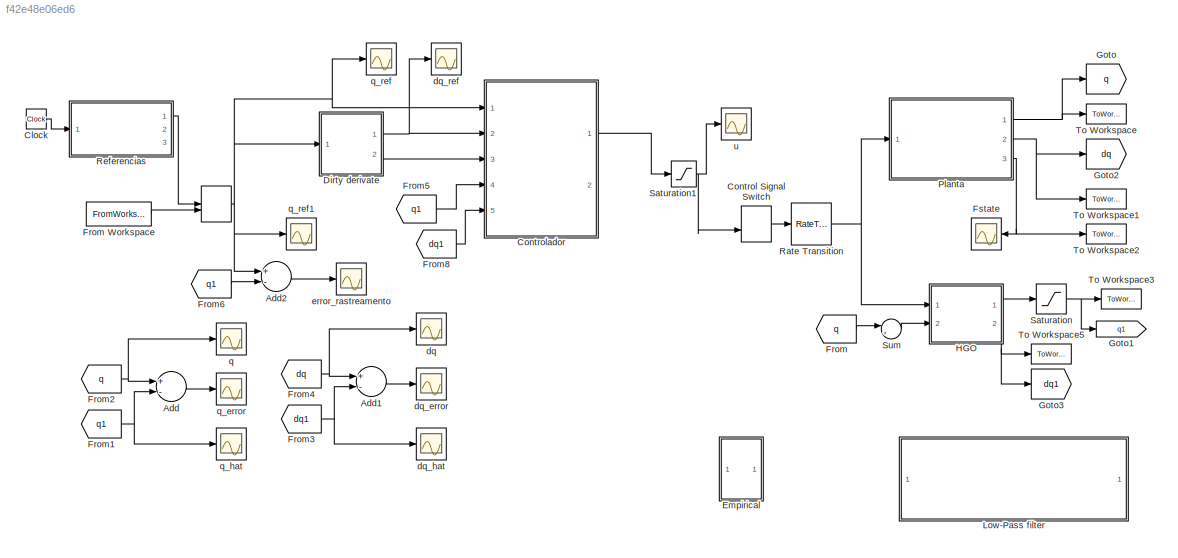
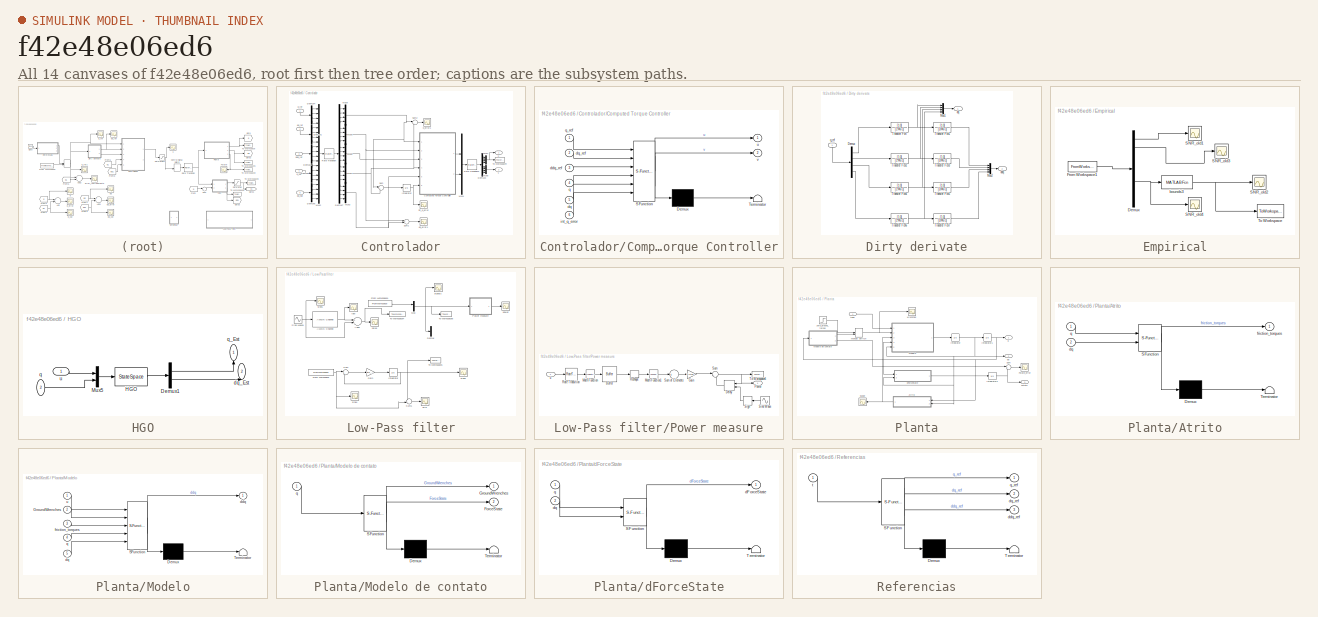
[diagram: thumbnail index - all 14 canvases of the model, root first then tree order]
MODEL slx_f42e48e06ed6
KIND model
CONFIG AbsTol = auto
CONFIG EnableMultiTasking = on
CONFIG FixedStep = simulation_step
CONFIG MaxStep = 1e-2
CONFIG MinStep = auto
CONFIG RelTol = 1e-3
CONFIG SampleTimeConstraint = Unconstrained
CONFIG Solver = FixedStepAuto
CONFIG SolverName = FixedStepAuto
CONFIG StartTime = 0.0
CONFIG StopTime = 15
BLOCK [ManualSwitch]  
  CurrentSetting = 0
BLOCK [Sum] Add
  InputSameDT = off
  Inputs = +-
  OutDataTypeStr = Inherit: Inherit via internal rule
  Ports = [2, 1]
  SaturateOnIntegerOverflow = off
BLOCK [Sum] Add1
  InputSameDT = off
  Inputs = +-
  OutDataTypeStr = Inherit: Inherit via internal rule
  Ports = [2, 1]
  SaturateOnIntegerOverflow = off
BLOCK [Sum] Add2
  InputSameDT = off
  Inputs = +-
  OutDataTypeStr = Inherit: Inherit via internal rule
  Ports = [2, 1]
  SaturateOnIntegerOverflow = off
BLOCK [Clock] Clock
BLOCK [ManualSwitch] Control Signal Switch
  CurrentSetting = 0
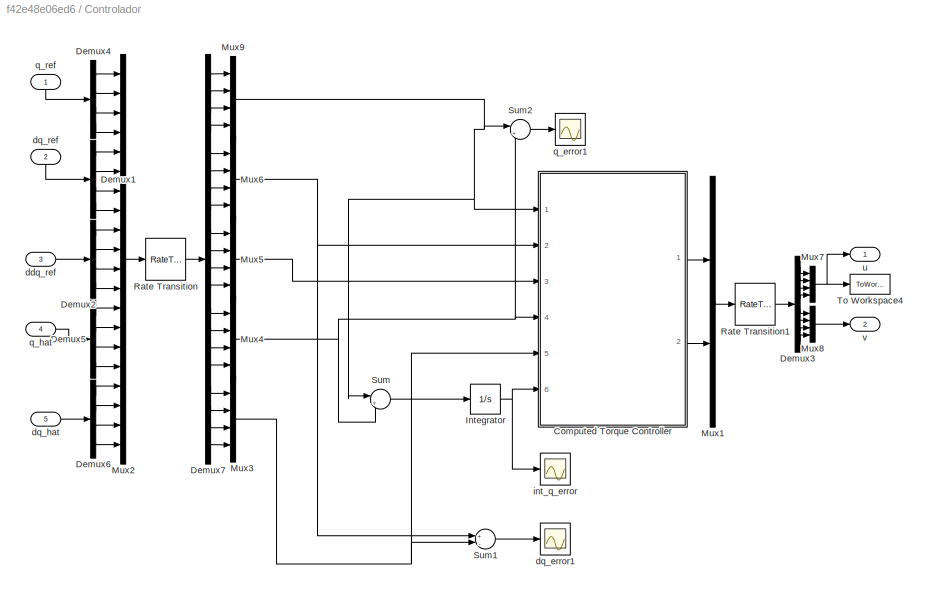
BLOCK [SubSystem] Controlador
  Ports = [5, 2]
  RequestExecContextInheritance = off
  Variant = off
BLOCK [SubSystem] Controlador/Computed Torque Controller
  ErrorFcn = Stateflow.Translate.translate
  PermitHierarchicalResolution = ExplicitOnly
  Ports = [6, 2]
  RequestExecContextInheritance = off
  SFBlockType = MATLAB Function
  TreatAsAtomicUnit = on
  Variant = off
BLOCK [Demux] Controlador/Computed Torque Controller/ Demux 
  Outputs = 1
  Ports = [1, 1]
BLOCK [S-Function] Controlador/Computed Torque Controller/ SFunction 
  EnableBusSupport = on
  FunctionName = sf_sfun
  Parameters = G_ctrl,Inertia_ctrl,Kd,Ki,Kp,L_ctrl,Mass_ctrl,R_ctrl,h_ctrl,joint_type
  PortCounts = [6 3]
  Ports = [6, 3]
  SFcnIsStateOwnerBlock = off
  SFunctionDeploymentMode = off
  Tag = Stateflow S-Function Leg_4DOF_HGO_noise 5
BLOCK [Terminator] Controlador/Computed Torque Controller/ Terminator 
BLOCK [Inport] Controlador/Computed Torque Controller/ddq_ref
  IconDisplay = Port number
  Port = 3
BLOCK [Inport] Controlador/Computed Torque Controller/dq
  IconDisplay = Port number
  Port = 5
BLOCK [Inport] Controlador/Computed Torque Controller/dq_ref
  IconDisplay = Port number
  Port = 2
BLOCK [Inport] Controlador/Computed Torque Controller/int_q_error
  IconDisplay = Port number
  Port = 6
BLOCK [Inport] Controlador/Computed Torque Controller/q
  IconDisplay = Port number
  Port = 4
BLOCK [Inport] Controlador/Computed Torque Controller/q_ref
  IconDisplay = Port number
BLOCK [Outport] Controlador/Computed Torque Controller/u
  IconDisplay = Port number
BLOCK [Outport] Controlador/Computed Torque Controller/v
  IconDisplay = Port number
  Port = 2
BLOCK [Demux] Controlador/Demux1
  DisplayOption = bar
  Ports = [1, 4]
BLOCK [Demux] Controlador/Demux2
  DisplayOption = bar
  Ports = [1, 4]
BLOCK [Demux] Controlador/Demux3
  DisplayOption = bar
  Outputs = 8
  Ports = [1, 8]
BLOCK [Demux] Controlador/Demux4
  DisplayOption = bar
  Ports = [1, 4]
BLOCK [Demux] Controlador/Demux5
  DisplayOption = bar
  Ports = [1, 4]
BLOCK [Demux] Controlador/Demux6
  DisplayOption = bar
  Ports = [1, 4]
BLOCK [Demux] Controlador/Demux7
  DisplayOption = bar
  Outputs = 20
  Ports = [1, 20]
BLOCK [Integrator] Controlador/Integrator
  InitialCondition = zeros(4,1)
  Ports = [1, 1]
BLOCK [Mux] Controlador/Mux1
  DisplayOption = bar
  Inputs = 2
  Ports = [2, 1]
BLOCK [Mux] Controlador/Mux2
  DisplayOption = bar
  Inputs = 20
  Ports = [20, 1]
BLOCK [Mux] Controlador/Mux3
  DisplayOption = bar
  Ports = [4, 1]
BLOCK [Mux] Controlador/Mux4
  DisplayOption = bar
  Ports = [4, 1]
BLOCK [Mux] Controlador/Mux5
  DisplayOption = bar
  Ports = [4, 1]
BLOCK [Mux] Controlador/Mux6
  DisplayOption = bar
  Ports = [4, 1]
BLOCK [Mux] Controlador/Mux7
  DisplayOption = bar
  Ports = [4, 1]
BLOCK [Mux] Controlador/Mux8
  DisplayOption = bar
  Ports = [4, 1]
BLOCK [Mux] Controlador/Mux9
  DisplayOption = bar
  Ports = [4, 1]
BLOCK [RateTransition] Controlador/Rate Transition
  OutPortSampleTime = simulation_step
BLOCK [RateTransition] Controlador/Rate Transition1
  OutPortSampleTime = 1e-3
BLOCK [Sum] Controlador/Sum
  IconShape = round
  InputSameDT = off
  Inputs = |+-
  OutDataTypeStr = Inherit: Inherit via internal rule
  Ports = [2, 1]
  SaturateOnIntegerOverflow = off
BLOCK [Sum] Controlador/Sum1
  IconShape = round
  InputSameDT = off
  Inputs = +|-
  OutDataTypeStr = Inherit: Inherit via internal rule
  Ports = [2, 1]
  SaturateOnIntegerOverflow = off
BLOCK [Sum] Controlador/Sum2
  IconShape = round
  InputSameDT = off
  Inputs = |+-
  OutDataTypeStr = Inherit: Inherit via internal rule
  Ports = [2, 1]
  SaturateOnIntegerOverflow = off
BLOCK [ToWorkspace] Controlador/To Workspace4
  FixptAsFi = on
  MaxDataPoints = inf
  Ports = [1]
  SampleTime = -1
  Save2DSignal = 3-D array (concatenate along third dimension)
  SaveFormat = Timeseries
  VariableName = u1
BLOCK [Inport] Controlador/ddq_ref
  IconDisplay = Port number
  Port = 3
BLOCK [Scope] Controlador/dq_error1
  NumInputPorts = 1
  Ports = [1]
  ScopeSpecificationString = Simulink.scopes.TimeScopeBlockCfg('CurrentConfiguration', extmgr.ConfigurationSet(extmgr.Configuration('Core','General UI',true),extmgr.Configuration('Core','Source UI',true),extmgr.Configuration('Sources','WiredSimulink',true,'DataLoggingVariableName','ScopeData3','DataLoggingLimitDataPoints',true,'DataLoggingSaveFormat','Array','DataLoggingDecimation','1','DataLoggingDecimateData',true),extmgr.C...<+898ch>
BLOCK [Inport] Controlador/dq_hat
  IconDisplay = Port number
  Port = 5
BLOCK [Inport] Controlador/dq_ref
  IconDisplay = Port number
  Port = 2
BLOCK [Scope] Controlador/int_q_error
  NumInputPorts = 1
  Ports = [1]
  ScopeSpecificationString = Simulink.scopes.TimeScopeBlockCfg('CurrentConfiguration', extmgr.ConfigurationSet(extmgr.Configuration('Core','General UI',true),extmgr.Configuration('Core','Source UI',true),extmgr.Configuration('Sources','WiredSimulink',true,'DataLoggingVariableName','ScopeData4','DataLoggingLimitDataPoints',true,'DataLoggingSaveFormat','Array','DataLoggingDecimation','1','DataLoggingDecimateData',true),extmgr.C...<+1741ch>
BLOCK [Scope] Controlador/q_error1
  NumInputPorts = 1
  Ports = [1]
  ScopeSpecificationString = Simulink.scopes.TimeScopeBlockCfg('CurrentConfiguration', extmgr.ConfigurationSet(extmgr.Configuration('Core','General UI',true),extmgr.Configuration('Core','Source UI',true),extmgr.Configuration('Sources','WiredSimulink',true,'DataLoggingVariableName','ScopeData5','DataLoggingLimitDataPoints',true,'DataLoggingSaveFormat','Array','DataLoggingDecimation','1','DataLoggingDecimateData',true),extmgr.C...<+1785ch>
BLOCK [Inport] Controlador/q_hat
  IconDisplay = Port number
  Port = 4
BLOCK [Inport] Controlador/q_ref
  IconDisplay = Port number
BLOCK [Outport] Controlador/u
  IconDisplay = Port number
BLOCK [Outport] Controlador/v
  IconDisplay = Port number
  Port = 2
BLOCK [SubSystem] Dirty derivate
  Ports = [1, 2]
  RequestExecContextInheritance = off
  Variant = off
BLOCK [Demux] Dirty derivate/Demux
  DisplayOption = bar
  Ports = [1, 4]
BLOCK [Mux] Dirty derivate/Mux1
  DisplayOption = bar
  Ports = [4, 1]
BLOCK [Mux] Dirty derivate/Mux2
  DisplayOption = bar
  Ports = [4, 1]
BLOCK [TransferFcn] Dirty derivate/Transfer Fcn
  Denominator = [1*Mu 1]
  Numerator = [1 0]
BLOCK [TransferFcn] Dirty derivate/Transfer Fcn1
  Denominator = [1/Mu 1]
  Numerator = [1 0]
BLOCK [TransferFcn] Dirty derivate/Transfer Fcn2
  Denominator = [1*Mu 1]
  Numerator = [1 0]
BLOCK [TransferFcn] Dirty derivate/Transfer Fcn3
  Denominator = [1/Mu 1]
  Numerator = [1 0]
BLOCK [TransferFcn] Dirty derivate/Transfer Fcn4
  Denominator = [1*Mu 1]
  Numerator = [1 0]
BLOCK [TransferFcn] Dirty derivate/Transfer Fcn5
  Denominator = [1/Mu 1]
  Numerator = [1 0]
BLOCK [TransferFcn] Dirty derivate/Transfer Fcn6
  Denominator = [1*Mu 1]
  Numerator = [1 0]
BLOCK [TransferFcn] Dirty derivate/Transfer Fcn7
  Denominator = [1/Mu 1]
  Numerator = [1 0]
BLOCK [Outport] Dirty derivate/ddq
  IconDisplay = Port number
  Port = 2
BLOCK [Outport] Dirty derivate/dq
  IconDisplay = Port number
BLOCK [Inport] Dirty derivate/q_ref
  IconDisplay = Port number
BLOCK [SubSystem] Empirical
  Ports = []
  RequestExecContextInheritance = off
  Variant = off
BLOCK [Demux] Empirical/Demux
  DisplayOption = bar
  Outputs = 8
  Ports = [1, 8]
BLOCK [FromWorkspace] Empirical/From Workspace1
  SampleTime = 0
  VariableName = data_steps_noisy
  ZeroCross = on
BLOCK [Scope] Empirical/SNR_old1
  NumInputPorts = 1
  Ports = [1]
  ScopeSpecificationString = Simulink.scopes.TimeScopeBlockCfg('CurrentConfiguration', extmgr.ConfigurationSet(extmgr.Configuration('Core','General UI',true),extmgr.Configuration('Core','Source UI',true),extmgr.Configuration('Sources','WiredSimulink',true,'DataLoggingVariableName','ScopeData5','DataLoggingSaveFormat','Array','DataLoggingDecimation','1','DataLoggingDecimateData',true),extmgr.Configuration('Visuals','Time Domai...<+1697ch>
BLOCK [Scope] Empirical/SNR_old2
  NumInputPorts = 1
  Ports = [1]
  ScopeSpecificationString = Simulink.scopes.TimeScopeBlockCfg('CurrentConfiguration', extmgr.ConfigurationSet(extmgr.Configuration('Core','General UI',true),extmgr.Configuration('Core','Source UI',true),extmgr.Configuration('Sources','WiredSimulink',true,'DataLoggingVariableName','ScopeData4','DataLoggingSaveFormat','Array','DataLoggingDecimation','1','DataLoggingDecimateData',true),extmgr.Configuration('Visuals','Time Domai...<+2133ch>
BLOCK [Scope] Empirical/SNR_old3
  NumInputPorts = 1
  Ports = [1]
  ScopeSpecificationString = Simulink.scopes.TimeScopeBlockCfg('CurrentConfiguration', extmgr.ConfigurationSet(extmgr.Configuration('Core','General UI',true),extmgr.Configuration('Core','Source UI',true),extmgr.Configuration('Sources','WiredSimulink',true,'DataLoggingVariableName','ScopeData6','DataLoggingSaveFormat','Array','DataLoggingDecimation','1','DataLoggingDecimateData',true),extmgr.Configuration('Visuals','Time Domai...<+2005ch>
BLOCK [Scope] Empirical/SNR_old4
  NumInputPorts = 1
  Ports = [1]
  ScopeSpecificationString = Simulink.scopes.TimeScopeBlockCfg('CurrentConfiguration', extmgr.ConfigurationSet(extmgr.Configuration('Core','General UI',true),extmgr.Configuration('Core','Source UI',true),extmgr.Configuration('Sources','WiredSimulink',true,'DataLoggingVariableName','ScopeData7','DataLoggingSaveFormat','Array','DataLoggingDecimation','1','DataLoggingDecimateData',true),extmgr.Configuration('Visuals','Time Domai...<+1725ch>
BLOCK [ToWorkspace] Empirical/To Workspace
  FixptAsFi = on
  MaxDataPoints = inf
  Ports = [1]
  SampleTime = -1
  Save2DSignal = 2-D array (concatenate along first dimension)
  VariableName = empirical_filter
BLOCK [MATLABFcn] Empirical/bounds3
  MATLABFcn = sinalruido
  Output1D = off
  Ports = [1, 1]
BLOCK [From] From
  GotoTag = q
BLOCK [FromWorkspace] From Workspace
  SampleTime = 0
  VariableName = data_steps
  ZeroCross = on
BLOCK [From] From1
  GotoTag = q1
BLOCK [From] From2
  GotoTag = q
BLOCK [From] From3
  GotoTag = dq1
BLOCK [From] From4
  GotoTag = dq
BLOCK [From] From5
  GotoTag = q1
BLOCK [From] From6
  GotoTag = q1
BLOCK [From] From8
  GotoTag = dq1
BLOCK [Scope] Fstate
  NumInputPorts = 1
  Ports = [1]
  ScopeSpecificationString = Simulink.scopes.TimeScopeBlockCfg('CurrentConfiguration', extmgr.ConfigurationSet(extmgr.Configuration('Core','General UI',true),extmgr.Configuration('Core','Source UI',true),extmgr.Configuration('Sources','WiredSimulink',true,'DataLoggingLimitDataPoints',true,'DataLoggingSaveFormat','Array','DataLoggingDecimation','1','DataLoggingDecimateData',true,'DataLoggingVariableName','ScopeData1'),extmgr.C...<+1750ch>
BLOCK [Goto] Goto
  GotoTag = q
BLOCK [Goto] Goto1
  GotoTag = q1
BLOCK [Goto] Goto2
  GotoTag = dq
BLOCK [Goto] Goto3
  GotoTag = dq1
BLOCK [SubSystem] HGO
  Ports = [2, 2]
  RequestExecContextInheritance = off
  Variant = off
BLOCK [Demux] HGO/Demux1
  DisplayOption = bar
  Outputs = 2
  Ports = [1, 2]
BLOCK [StateSpace] HGO/HGO
  A = Ar-Hmu*L_hgo*Cr
  B = [Br Hmu*L_hgo]
  C = eye(8)
  D = zeros(8)
  Ports = [1, 1]
  X0 = [0.0181; 0.5; -0.15; -0.38; 0.0; 0.0; 0.0; 0.0]
BLOCK [Mux] HGO/Mux5
  DisplayOption = bar
  Inputs = 2
  Ports = [2, 1]
BLOCK [Outport] HGO/dq_Est
  IconDisplay = Port number
  Port = 2
  PortDimensions = 4
BLOCK [Inport] HGO/q
  IconDisplay = Port number
  Port = 2
BLOCK [Outport] HGO/q_Est
  IconDisplay = Port number
  PortDimensions = 4
BLOCK [Inport] HGO/u
  IconDisplay = Port number
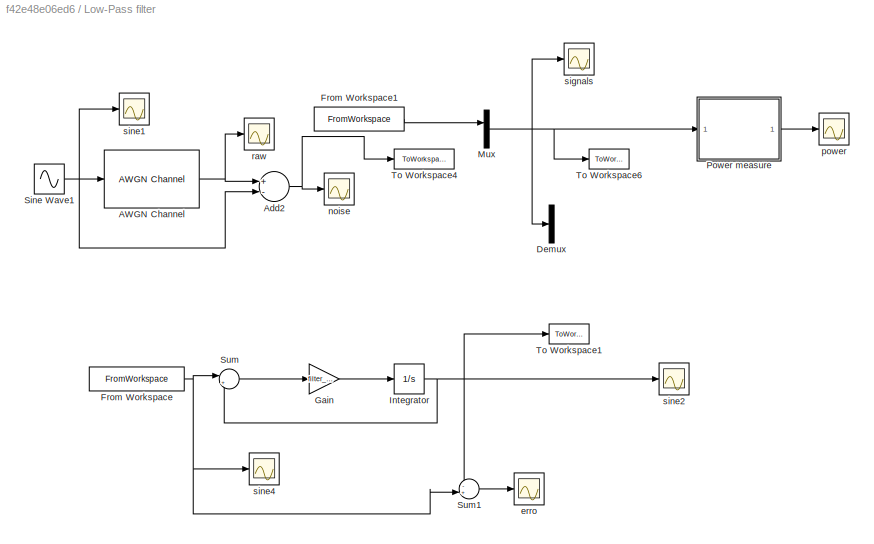
BLOCK [SubSystem] Low-Pass filter
  Ports = []
  RequestExecContextInheritance = off
  Variant = off
BLOCK [Reference] Low-Pass filter/AWGN Channel  REF=commchan3/AWGN
Channel
  Ports = [1, 1]
  SourceBlock = commchan3/AWGN\nChannel
  SourceProductBaseCode = CM
  SourceProductName = Communications System Toolbox
  SourceType = AWGN Channel
  UserDataPersistent = on
BLOCK [Sum] Low-Pass filter/Add2
  InputSameDT = off
  Inputs = +-
  OutDataTypeStr = Inherit: Inherit via internal rule
  Ports = [2, 1]
  SaturateOnIntegerOverflow = off
BLOCK [Demux] Low-Pass filter/Demux
  DisplayOption = bar
  Outputs = 5
  Ports = [1, 5]
BLOCK [FromWorkspace] Low-Pass filter/From Workspace
  SampleTime = 0
  VariableName = data_steps_noisy
  ZeroCross = on
BLOCK [FromWorkspace] Low-Pass filter/From Workspace1
  SampleTime = 0
  VariableName = data_steps
  ZeroCross = on
BLOCK [Gain] Low-Pass filter/Gain
  Gain = filter_pole
  OutDataTypeStr = Inherit: Inherit via internal rule
  ParamDataTypeStr = Inherit: Inherit via internal rule
  SaturateOnIntegerOverflow = off
BLOCK [Integrator] Low-Pass filter/Integrator
  Ports = [1, 1]
BLOCK [Mux] Low-Pass filter/Mux
  DisplayOption = bar
  Inputs = 2
  Ports = [2, 1]
BLOCK [SubSystem] Low-Pass filter/Power measure
  Ports = [1, 1]
  RequestExecContextInheritance = off
  Variant = off
BLOCK [Buffer] Low-Pass filter/Power measure/Buffer
  N = 5 * window/sampling
  OutputFrames = off
BLOCK [Delay] Low-Pass filter/Power measure/Delay
  DelayLength = 1
  ExternalReset = Either
  InputPortMap = u0,r5
  Ports = [2, 1]
BLOCK [Gain] Low-Pass filter/Power measure/Gain
  Gain = 1/(step_period/sampling)
  OutDataTypeStr = Inherit: Inherit via internal rule
  ParamDataTypeStr = Inherit: Inherit via internal rule
  SaturateOnIntegerOverflow = off
BLOCK [Math] Low-Pass filter/Power measure/Math Function
  Operator = magnitude^2
  Ports = [1, 1]
BLOCK [Math] Low-Pass filter/Power measure/Math Function1
  Operator = transpose
  Ports = [1, 1]
BLOCK [Outport] Low-Pass filter/Power measure/Power
  IconDisplay = Port number
BLOCK [RateTransition] Low-Pass filter/Power measure/Rate Transition
  OutPortSampleTime = sampling
BLOCK [Reshape] Low-Pass filter/Power measure/Reshape
  OutputDimensionality = Customize
  OutputDimensions = [5,window/sampling]
  Ports = [1, 1]
BLOCK [Signum] Low-Pass filter/Power measure/Sign
BLOCK [Sin] Low-Pass filter/Power measure/Sine Wave
  Frequency = 2*pi / (2 * step_period)
  Ports = [0, 1]
  SampleTime = window
BLOCK [Sum] Low-Pass filter/Power measure/Sum
  IconShape = round
  InputSameDT = off
  Inputs = |++
  OutDataTypeStr = Inherit: Inherit via internal rule
  Ports = [2, 1]
  SaturateOnIntegerOverflow = off
BLOCK [Sum] Low-Pass filter/Power measure/Sum of Elements
  CollapseMode = Specified dimension
  InputSameDT = off
  Inputs = +
  OutDataTypeStr = Inherit: Inherit via internal rule
  Ports = [1, 1]
  SaturateOnIntegerOverflow = off
BLOCK [ToWorkspace] Low-Pass filter/Power measure/To Workspace6
  FixptAsFi = on
  MaxDataPoints = inf
  Ports = [1]
  SampleTime = -1
  Save2DSignal = 3-D array (concatenate along third dimension)
  SaveFormat = Timeseries
  VariableName = power
BLOCK [Inport] Low-Pass filter/Power measure/u
  IconDisplay = Port number
BLOCK [Sin] Low-Pass filter/Sine Wave1
  Amplitude = 2
  Frequency = 2*pi / (2 * step_period)
  Ports = [0, 1]
  SampleTime = 0
BLOCK [Sum] Low-Pass filter/Sum
  IconShape = round
  InputSameDT = off
  Inputs = |+-
  OutDataTypeStr = Inherit: Inherit via internal rule
  Ports = [2, 1]
  SaturateOnIntegerOverflow = off
BLOCK [Sum] Low-Pass filter/Sum1
  IconShape = round
  InputSameDT = off
  Inputs = -+|
  OutDataTypeStr = Inherit: Inherit via internal rule
  Ports = [2, 1]
  SaturateOnIntegerOverflow = off
BLOCK [ToWorkspace] Low-Pass filter/To Workspace1
  FixptAsFi = on
  MaxDataPoints = inf
  Ports = [1]
  SampleTime = -1
  Save2DSignal = 3-D array (concatenate along third dimension)
  SaveFormat = Timeseries
  VariableName = data_steps_filtered
BLOCK [ToWorkspace] Low-Pass filter/To Workspace4
  FixptAsFi = on
  MaxDataPoints = inf
  Ports = [1]
  SampleTime = -1
  Save2DSignal = 3-D array (concatenate along third dimension)
  SaveFormat = Timeseries
  VariableName = noise_band
BLOCK [ToWorkspace] Low-Pass filter/To Workspace6
  FixptAsFi = on
  MaxDataPoints = inf
  Ports = [1]
  SampleTime = -1
  Save2DSignal = 3-D array (concatenate along third dimension)
  SaveFormat = Timeseries
  VariableName = u_teste
BLOCK [Scope] Low-Pass filter/erro
  NumInputPorts = 1
  Ports = [1]
  ScopeSpecificationString = Simulink.scopes.TimeScopeBlockCfg('CurrentConfiguration', extmgr.ConfigurationSet(extmgr.Configuration('Core','General UI',true),extmgr.Configuration('Core','Source UI',true),extmgr.Configuration('Sources','WiredSimulink',true,'DataLoggingVariableName','ScopeData2','DataLoggingSaveFormat','Array','DataLoggingDecimation','1','DataLoggingDecimateData',true),extmgr.Configuration('Visuals','Time Domai...<+1736ch>
BLOCK [Scope] Low-Pass filter/noise
  NumInputPorts = 1
  Ports = [1]
  ScopeSpecificationString = Simulink.scopes.TimeScopeBlockCfg('CurrentConfiguration', extmgr.ConfigurationSet(extmgr.Configuration('Core','General UI',true),extmgr.Configuration('Core','Source UI',true),extmgr.Configuration('Sources','WiredSimulink',true,'DataLoggingVariableName','ScopeData9','DataLoggingSaveFormat','Array','DataLoggingDecimation','1','DataLoggingDecimateData',true),extmgr.Configuration('Visuals','Time Domai...<+1693ch>
BLOCK [Scope] Low-Pass filter/power
  NumInputPorts = 1
  Ports = [1]
  ScopeSpecificationString = Simulink.scopes.TimeScopeBlockCfg('CurrentConfiguration', extmgr.ConfigurationSet(extmgr.Configuration('Core','General UI',true),extmgr.Configuration('Core','Source UI',true),extmgr.Configuration('Sources','WiredSimulink',true,'DataLoggingVariableName','ScopeData10','DataLoggingSaveFormat','Array','DataLoggingDecimation','1','DataLoggingDecimateData',true),extmgr.Configuration('Visuals','Time Doma...<+1779ch>
BLOCK [Scope] Low-Pass filter/raw
  NumInputPorts = 1
  Ports = [1]
  ScopeSpecificationString = Simulink.scopes.TimeScopeBlockCfg('CurrentConfiguration', extmgr.ConfigurationSet(extmgr.Configuration('Core','General UI',true),extmgr.Configuration('Core','Source UI',true),extmgr.Configuration('Sources','WiredSimulink',true,'DataLoggingVariableName','ScopeData16','DataLoggingSaveFormat','Array','DataLoggingDecimation','1','DataLoggingDecimateData',true),extmgr.Configuration('Visuals','Time Doma...<+1702ch>
BLOCK [Scope] Low-Pass filter/signals
  NumInputPorts = 1
  Ports = [1]
  ScopeSpecificationString = Simulink.scopes.TimeScopeBlockCfg('CurrentConfiguration', extmgr.ConfigurationSet(extmgr.Configuration('Core','General UI',true),extmgr.Configuration('Core','Source UI',true),extmgr.Configuration('Sources','WiredSimulink',true,'DataLoggingVariableName','ScopeData17','DataLoggingSaveFormat','Array','DataLoggingDecimation','1','DataLoggingDecimateData',true),extmgr.Configuration('Visuals','Time Doma...<+1779ch>
BLOCK [Scope] Low-Pass filter/sine1
  NumInputPorts = 1
  Ports = [1]
  ScopeSpecificationString = Simulink.scopes.TimeScopeBlockCfg('CurrentConfiguration', extmgr.ConfigurationSet(extmgr.Configuration('Core','General UI',true),extmgr.Configuration('Core','Source UI',true),extmgr.Configuration('Sources','WiredSimulink',true,'DataLoggingVariableName','ScopeData18','DataLoggingSaveFormat','Array','DataLoggingDecimation','1','DataLoggingDecimateData',true),extmgr.Configuration('Visuals','Time Doma...<+1700ch>
BLOCK [Scope] Low-Pass filter/sine2
  NumInputPorts = 1
  Ports = [1]
  ScopeSpecificationString = Simulink.scopes.TimeScopeBlockCfg('CurrentConfiguration', extmgr.ConfigurationSet(extmgr.Configuration('Core','General UI',true),extmgr.Configuration('Core','Source UI',true),extmgr.Configuration('Sources','WiredSimulink',true,'DataLoggingVariableName','ScopeData1','DataLoggingSaveFormat','Array','DataLoggingDecimation','1','DataLoggingDecimateData',true),extmgr.Configuration('Visuals','Time Domai...<+1784ch>
BLOCK [Scope] Low-Pass filter/sine4
  NumInputPorts = 1
  Ports = [1]
  ScopeSpecificationString = Simulink.scopes.TimeScopeBlockCfg('CurrentConfiguration', extmgr.ConfigurationSet(extmgr.Configuration('Core','General UI',true),extmgr.Configuration('Core','Source UI',true),extmgr.Configuration('Sources','WiredSimulink',true,'DataLoggingVariableName','ScopeData3','DataLoggingSaveFormat','Array','DataLoggingDecimation','1','DataLoggingDecimateData',true),extmgr.Configuration('Visuals','Time Domai...<+1816ch>
BLOCK [SubSystem] Planta
  Ports = [1, 3]
  RequestExecContextInheritance = off
  Variant = off
BLOCK [SubSystem] Planta/Atrito
  ErrorFcn = Stateflow.Translate.translate
  PermitHierarchicalResolution = ExplicitOnly
  Ports = [2, 1]
  RequestExecContextInheritance = off
  SFBlockType = MATLAB Function
  TreatAsAtomicUnit = on
  Variant = off
BLOCK [Demux] Planta/Atrito/ Demux 
  Outputs = 1
  Ports = [1, 1]
BLOCK [S-Function] Planta/Atrito/ SFunction 
  EnableBusSupport = on
  FunctionName = sf_sfun
  PortCounts = [2 2]
  Ports = [2, 2]
  SFcnIsStateOwnerBlock = off
  SFunctionDeploymentMode = off
  Tag = Stateflow S-Function Leg_4DOF_HGO_noise 4
BLOCK [Terminator] Planta/Atrito/ Terminator 
BLOCK [Inport] Planta/Atrito/dq
  IconDisplay = Port number
  Port = 2
BLOCK [Outport] Planta/Atrito/friction_torques
  IconDisplay = Port number
BLOCK [Inport] Planta/Atrito/q
  IconDisplay = Port number
BLOCK [Outport] Planta/Fstate
  IconDisplay = Port number
  Port = 3
BLOCK [Scope] Planta/Fstate_error
  NumInputPorts = 1
  Ports = [1]
  ScopeSpecificationString = Simulink.scopes.TimeScopeBlockCfg('CurrentConfiguration', extmgr.ConfigurationSet(extmgr.Configuration('Core','General UI',true),extmgr.Configuration('Core','Source UI',true),extmgr.Configuration('Sources','WiredSimulink',true,'DataLoggingSaveFormat','Array','DataLoggingDecimation','1','DataLoggingDecimateData',true,'DataLoggingVariableName','ScopeData3'),extmgr.Configuration('Visuals','Time Domai...<+1684ch>
BLOCK [Integrator] Planta/Integrator
  InitialCondition = dqInit
  Ports = [1, 1]
BLOCK [Integrator] Planta/Integrator1
  InitialCondition = qInit
  Ports = [1, 1]
BLOCK [Integrator] Planta/Integrator2
  InitialCondition = Fstate0
  Ports = [1, 1]
BLOCK [ManualSwitch] Planta/Manual Switch
  CurrentSetting = 0
BLOCK [SubSystem] Planta/Modelo
  ErrorFcn = Stateflow.Translate.translate
  PermitHierarchicalResolution = ExplicitOnly
  Ports = [5, 1]
  RequestExecContextInheritance = off
  SFBlockType = MATLAB Function
  TreatAsAtomicUnit = on
  Variant = off
BLOCK [SubSystem] Planta/Modelo de contato
  ErrorFcn = Stateflow.Translate.translate
  PermitHierarchicalResolution = ExplicitOnly
  Ports = [1, 2]
  RequestExecContextInheritance = off
  SFBlockType = MATLAB Function
  TreatAsAtomicUnit = on
  Variant = off
BLOCK [Demux] Planta/Modelo de contato/ Demux 
  Outputs = 1
  Ports = [1, 1]
BLOCK [S-Function] Planta/Modelo de contato/ SFunction 
  EnableBusSupport = on
  FunctionName = sf_sfun
  Parameters = BodyContactPositions,L,beta,h,joint_type,k_b,s_z
  PortCounts = [1 3]
  Ports = [1, 3]
  SFcnIsStateOwnerBlock = off
  SFunctionDeploymentMode = off
  Tag = Stateflow S-Function Leg_4DOF_HGO_noise 6
BLOCK [Terminator] Planta/Modelo de contato/ Terminator 
BLOCK [Outport] Planta/Modelo de contato/ForceState
  IconDisplay = Port number
  Port = 2
BLOCK [Outport] Planta/Modelo de contato/GroundWrenches
  IconDisplay = Port number
BLOCK [Inport] Planta/Modelo de contato/q
  IconDisplay = Port number
BLOCK [Demux] Planta/Modelo/ Demux 
  Outputs = 1
  Ports = [1, 1]
BLOCK [S-Function] Planta/Modelo/ SFunction 
  EnableBusSupport = on
  FunctionName = sf_sfun
  Parameters = BodyContact,BodyContactPositions,G,Inertia,L,Mass,R,h,joint_type
  PortCounts = [5 2]
  Ports = [5, 2]
  SFcnIsStateOwnerBlock = off
  SFunctionDeploymentMode = off
  Tag = Stateflow S-Function Leg_4DOF_HGO_noise 2
BLOCK [Terminator] Planta/Modelo/ Terminator 
BLOCK [Inport] Planta/Modelo/GroundWrenches
  IconDisplay = Port number
  Port = 2
BLOCK [Outport] Planta/Modelo/ddq
  IconDisplay = Port number
BLOCK [Inport] Planta/Modelo/dq
  IconDisplay = Port number
  Port = 5
BLOCK [Inport] Planta/Modelo/friction_torques
  IconDisplay = Port number
  Port = 3
BLOCK [Inport] Planta/Modelo/q
  IconDisplay = Port number
  Port = 4
BLOCK [Inport] Planta/Modelo/u
  IconDisplay = Port number
BLOCK [Scope] Planta/Scope
  NumInputPorts = 1
  Ports = [1]
  ScopeSpecificationString = Simulink.scopes.TimeScopeBlockCfg('CurrentConfiguration', extmgr.ConfigurationSet(extmgr.Configuration('Core','General UI',true),extmgr.Configuration('Core','Source UI',true),extmgr.Configuration('Sources','WiredSimulink',true,'DataLoggingVariableName','ScopeData4'),extmgr.Configuration('Visuals','Time Domain',true),extmgr.Configuration('Tools','Plot Navigation',true),extmgr.Configuration('Tools',...<+40ch>
BLOCK [Sum] Planta/Sum
  IconShape = round
  InputSameDT = off
  Inputs = |+-
  OutDataTypeStr = Inherit: Inherit via internal rule
  Ports = [2, 1]
  SaturateOnIntegerOverflow = off
BLOCK [SubSystem] Planta/dForceState
  ErrorFcn = Stateflow.Translate.translate
  PermitHierarchicalResolution = ExplicitOnly
  Ports = [2, 1]
  RequestExecContextInheritance = off
  SFBlockType = MATLAB Function
  TreatAsAtomicUnit = on
  Variant = off
BLOCK [Demux] Planta/dForceState/ Demux 
  Outputs = 1
  Ports = [1, 1]
BLOCK [S-Function] Planta/dForceState/ SFunction 
  EnableBusSupport = on
  FunctionName = sf_sfun
  Parameters = BodyContactPositions,L,beta,h,joint_type,k_b,s_z
  PortCounts = [2 2]
  Ports = [2, 2]
  SFcnIsStateOwnerBlock = off
  SFunctionDeploymentMode = off
  Tag = Stateflow S-Function Leg_4DOF_HGO_noise 7
BLOCK [Terminator] Planta/dForceState/ Terminator 
BLOCK [Outport] Planta/dForceState/dForceState
  IconDisplay = Port number
BLOCK [Inport] Planta/dForceState/dq
  IconDisplay = Port number
  Port = 2
BLOCK [Inport] Planta/dForceState/q
  IconDisplay = Port number
BLOCK [Outport] Planta/dq
  IconDisplay = Port number
  Port = 2
BLOCK [Outport] Planta/q
  IconDisplay = Port number
BLOCK [Inport] Planta/tauq
  IconDisplay = Port number
BLOCK [Scope] Planta/wrenches
  NumInputPorts = 1
  Ports = [1]
  ScopeSpecificationString = Simulink.scopes.TimeScopeBlockCfg('CurrentConfiguration', extmgr.ConfigurationSet(extmgr.Configuration('Core','General UI',true),extmgr.Configuration('Core','Source UI',true),extmgr.Configuration('Sources','WiredSimulink',true,'DataLoggingLimitDataPoints',true,'DataLoggingSaveFormat','Array','DataLoggingDecimation','1','DataLoggingDecimateData',true,'DataLoggingVariableName','ScopeData1'),extmgr.C...<+1933ch>
BLOCK [Step] Planta/zero_ground_forces
  After = zeros(6,2)
  Before = zeros(6,2)
  SampleTime = simulation_step
BLOCK [RateTransition] Rate Transition
  OutPortSampleTime = simulation_step
BLOCK [SubSystem] Referencias
  ErrorFcn = Stateflow.Translate.translate
  PermitHierarchicalResolution = ExplicitOnly
  Ports = [1, 3]
  RequestExecContextInheritance = off
  SFBlockType = MATLAB Function
  TreatAsAtomicUnit = on
  Variant = off
BLOCK [Demux] Referencias/ Demux 
  Outputs = 1
  Ports = [1, 1]
BLOCK [S-Function] Referencias/ SFunction 
  EnableBusSupport = on
  FunctionName = sf_sfun
  Parameters = Amp,offset,w
  PortCounts = [1 4]
  Ports = [1, 4]
  SFcnIsStateOwnerBlock = off
  SFunctionDeploymentMode = off
  Tag = Stateflow S-Function Leg_4DOF_HGO_noise 3
BLOCK [Terminator] Referencias/ Terminator 
BLOCK [Outport] Referencias/ddq_ref
  IconDisplay = Port number
  Port = 3
BLOCK [Outport] Referencias/dq_ref
  IconDisplay = Port number
  Port = 2
BLOCK [Outport] Referencias/q_ref
  IconDisplay = Port number
BLOCK [Inport] Referencias/t
  IconDisplay = Port number
BLOCK [Saturate] Saturation
  InputPortMap = u0
  LowerLimit = -6*pi
  Ports = [1, 1]
  UpperLimit = 6*pi
BLOCK [Saturate] Saturation1
  InputPortMap = u0
  LowerLimit = -500
  Ports = [1, 1]
  UpperLimit = 500
BLOCK [Sum] Sum
  IconShape = round
  InputSameDT = off
  Inputs = |++
  OutDataTypeStr = Inherit: Inherit via internal rule
  Ports = [2, 1]
  SaturateOnIntegerOverflow = off
BLOCK [ToWorkspace] To Workspace
  FixptAsFi = on
  MaxDataPoints = inf
  Ports = [1]
  SampleTime = -1
  Save2DSignal = 3-D array (concatenate along third dimension)
  SaveFormat = Timeseries
  VariableName = q
BLOCK [ToWorkspace] To Workspace1
  FixptAsFi = on
  MaxDataPoints = inf
  Ports = [1]
  SampleTime = -1
  Save2DSignal = 3-D array (concatenate along third dimension)
  SaveFormat = Timeseries
  VariableName = dq
BLOCK [ToWorkspace] To Workspace2
  FixptAsFi = on
  MaxDataPoints = inf
  Ports = [1]
  SampleTime = -1
  Save2DSignal = 3-D array (concatenate along third dimension)
  SaveFormat = Timeseries
  VariableName = Fstate
BLOCK [ToWorkspace] To Workspace3
  FixptAsFi = on
  MaxDataPoints = inf
  Ports = [1]
  SampleTime = -1
  Save2DSignal = 3-D array (concatenate along third dimension)
  SaveFormat = Timeseries
  VariableName = q1
BLOCK [ToWorkspace] To Workspace5
  FixptAsFi = on
  MaxDataPoints = inf
  Ports = [1]
  SampleTime = -1
  Save2DSignal = 3-D array (concatenate along third dimension)
  SaveFormat = Timeseries
  VariableName = dq1
BLOCK [Scope] dq
  NumInputPorts = 1
  Ports = [1]
  ScopeSpecificationString = Simulink.scopes.TimeScopeBlockCfg('CurrentConfiguration', extmgr.ConfigurationSet(extmgr.Configuration('Core','General UI',true),extmgr.Configuration('Core','Source UI',true),extmgr.Configuration('Sources','WiredSimulink',true,'DataLoggingVariableName','ScopeData5','DataLoggingSaveFormat','Array','DataLoggingDecimation','1','DataLoggingDecimateData',true),extmgr.Configuration('Visuals','Time Domai...<+1692ch>
BLOCK [Scope] dq_error
  NumInputPorts = 1
  Ports = [1]
  ScopeSpecificationString = Simulink.scopes.TimeScopeBlockCfg('CurrentConfiguration', extmgr.ConfigurationSet(extmgr.Configuration('Core','General UI',true),extmgr.Configuration('Core','Source UI',true),extmgr.Configuration('Sources','WiredSimulink',true,'DataLoggingSaveFormat','Array','DataLoggingDecimation','1','DataLoggingDecimateData',true,'DataLoggingVariableName','ScopeData6'),extmgr.Configuration('Visuals','Time Domai...<+1700ch>
BLOCK [Scope] dq_hat
  NumInputPorts = 1
  Ports = [1]
  ScopeSpecificationString = Simulink.scopes.TimeScopeBlockCfg('CurrentConfiguration', extmgr.ConfigurationSet(extmgr.Configuration('Core','General UI',true),extmgr.Configuration('Core','Source UI',true),extmgr.Configuration('Sources','WiredSimulink',true,'DataLoggingVariableName','ScopeData7','DataLoggingSaveFormat','Array','DataLoggingDecimation','1','DataLoggingDecimateData',true),extmgr.Configuration('Visuals','Time Domai...<+1729ch>
BLOCK [Scope] dq_ref
  NumInputPorts = 1
  Ports = [1]
  ScopeSpecificationString = Simulink.scopes.TimeScopeBlockCfg('CurrentConfiguration', extmgr.ConfigurationSet(extmgr.Configuration('Core','General UI',true),extmgr.Configuration('Core','Source UI',true),extmgr.Configuration('Sources','WiredSimulink',true,'DataLoggingSaveFormat','Array','DataLoggingDecimation','1','DataLoggingDecimateData',true,'DataLoggingVariableName','ScopeData8'),extmgr.Configuration('Visuals','Time Domai...<+1743ch>
BLOCK [Scope] error_rastreamento
  NumInputPorts = 1
  Ports = [1]
  ScopeSpecificationString = Simulink.scopes.TimeScopeBlockCfg('CurrentConfiguration', extmgr.ConfigurationSet(extmgr.Configuration('Core','General UI',true),extmgr.Configuration('Core','Source UI',true),extmgr.Configuration('Sources','WiredSimulink',true,'DataLoggingSaveFormat','Array','DataLoggingDecimation','1','DataLoggingDecimateData',true,'DataLoggingVariableName','ScopeData1'),extmgr.Configuration('Visuals','Time Domai...<+1742ch>
BLOCK [Scope] q
  NumInputPorts = 1
  Ports = [1]
  ScopeSpecificationString = Simulink.scopes.TimeScopeBlockCfg('CurrentConfiguration', extmgr.ConfigurationSet(extmgr.Configuration('Core','General UI',true),extmgr.Configuration('Core','Source UI',true),extmgr.Configuration('Sources','WiredSimulink',true,'DataLoggingSaveFormat','Array','DataLoggingDecimation','1','DataLoggingDecimateData',true,'DataLoggingVariableName','ScopeData11'),extmgr.Configuration('Visuals','Time Doma...<+1743ch>
BLOCK [Scope] q_error
  NumInputPorts = 1
  Ports = [1]
  ScopeSpecificationString = Simulink.scopes.TimeScopeBlockCfg('CurrentConfiguration', extmgr.ConfigurationSet(extmgr.Configuration('Core','General UI',true),extmgr.Configuration('Core','Source UI',true),extmgr.Configuration('Sources','WiredSimulink',true,'DataLoggingSaveFormat','Array','DataLoggingDecimation','1','DataLoggingDecimateData',true,'DataLoggingVariableName','ScopeData12'),extmgr.Configuration('Visuals','Time Doma...<+1707ch>
BLOCK [Scope] q_hat
  NumInputPorts = 1
  Ports = [1]
  ScopeSpecificationString = Simulink.scopes.TimeScopeBlockCfg('CurrentConfiguration', extmgr.ConfigurationSet(extmgr.Configuration('Core','General UI',true),extmgr.Configuration('Core','Source UI',true),extmgr.Configuration('Sources','WiredSimulink',true,'DataLoggingSaveFormat','Array','DataLoggingDecimation','1','DataLoggingDecimateData',true,'DataLoggingVariableName','ScopeData13'),extmgr.Configuration('Visuals','Time Doma...<+1725ch>
BLOCK [Scope] q_ref
  NumInputPorts = 1
  Ports = [1]
  ScopeSpecificationString = Simulink.scopes.TimeScopeBlockCfg('CurrentConfiguration', extmgr.ConfigurationSet(extmgr.Configuration('Core','General UI',true),extmgr.Configuration('Core','Source UI',true),extmgr.Configuration('Sources','WiredSimulink',true,'DataLoggingSaveFormat','Array','DataLoggingDecimation','1','DataLoggingDecimateData',true,'DataLoggingVariableName','ScopeData14'),extmgr.Configuration('Visuals','Time Doma...<+1748ch>
BLOCK [Scope] q_ref1
  NumInputPorts = 1
  Ports = [1]
  ScopeSpecificationString = Simulink.scopes.TimeScopeBlockCfg('CurrentConfiguration', extmgr.ConfigurationSet(extmgr.Configuration('Core','General UI',true),extmgr.Configuration('Core','Source UI',true),extmgr.Configuration('Sources','WiredSimulink',true,'DataLoggingSaveFormat','Array','DataLoggingDecimation','1','DataLoggingDecimateData',true,'DataLoggingVariableName','ScopeData15'),extmgr.Configuration('Visuals','Time Doma...<+1671ch>
BLOCK [Scope] u
  NumInputPorts = 1
  Ports = [1]
  ScopeSpecificationString = Simulink.scopes.TimeScopeBlockCfg('CurrentConfiguration', extmgr.ConfigurationSet(extmgr.Configuration('Core','General UI',true),extmgr.Configuration('Core','Source UI',true),extmgr.Configuration('Sources','WiredSimulink',true,'DataLoggingSaveFormat','Array','DataLoggingDecimation','1','DataLoggingDecimateData',true,'DataLoggingVariableName','ScopeData19'),extmgr.Configuration('Visuals','Time Doma...<+1768ch>
NET  :1 -> Add2:1, Controlador:1, Dirty derivate:1, q_ref1:1, q_ref:1
LINE Add1:1 -> dq_error:1
LINE Add2:1 -> error_rastreamento:1
LINE Add:1 -> q_error:1
LINE Clock:1 -> Referencias:1
LINE Control Signal Switch:1 -> Rate Transition:1
LINE Controlador/Computed Torque Controller:1 -> Controlador/Mux1:1
LINE Controlador/Computed Torque Controller:2 -> Controlador/Mux1:2
LINE Controlador/Demux1:1 -> Controlador/Mux2:5
LINE Controlador/Demux1:2 -> Controlador/Mux2:6
LINE Controlador/Demux1:3 -> Controlador/Mux2:7
LINE Controlador/Demux1:4 -> Controlador/Mux2:8
LINE Controlador/Demux2:1 -> Controlador/Mux2:9
LINE Controlador/Demux2:2 -> Controlador/Mux2:10
LINE Controlador/Demux2:3 -> Controlador/Mux2:11
LINE Controlador/Demux2:4 -> Controlador/Mux2:12
LINE Controlador/Demux3:1 -> Controlador/Mux7:1
LINE Controlador/Demux3:2 -> Controlador/Mux7:2
LINE Controlador/Demux3:3 -> Controlador/Mux7:3
LINE Controlador/Demux3:4 -> Controlador/Mux7:4
LINE Controlador/Demux3:5 -> Controlador/Mux8:1
LINE Controlador/Demux3:6 -> Controlador/Mux8:2
LINE Controlador/Demux3:7 -> Controlador/Mux8:3
LINE Controlador/Demux3:8 -> Controlador/Mux8:4
LINE Controlador/Demux4:1 -> Controlador/Mux2:1
LINE Controlador/Demux4:2 -> Controlador/Mux2:2
LINE Controlador/Demux4:3 -> Controlador/Mux2:3
LINE Controlador/Demux4:4 -> Controlador/Mux2:4
LINE Controlador/Demux5:1 -> Controlador/Mux2:13
LINE Controlador/Demux5:2 -> Controlador/Mux2:14
LINE Controlador/Demux5:3 -> Controlador/Mux2:15
LINE Controlador/Demux5:4 -> Controlador/Mux2:16
LINE Controlador/Demux6:1 -> Controlador/Mux2:17
LINE Controlador/Demux6:2 -> Controlador/Mux2:18
LINE Controlador/Demux6:3 -> Controlador/Mux2:19
LINE Controlador/Demux6:4 -> Controlador/Mux2:20
LINE Controlador/Demux7:1 -> Controlador/Mux9:1
LINE Controlador/Demux7:10 -> Controlador/Mux5:2
LINE Controlador/Demux7:11 -> Controlador/Mux5:3
LINE Controlador/Demux7:12 -> Controlador/Mux5:4
LINE Controlador/Demux7:13 -> Controlador/Mux4:1
LINE Controlador/Demux7:14 -> Controlador/Mux4:2
LINE Controlador/Demux7:15 -> Controlador/Mux4:3
LINE Controlador/Demux7:16 -> Controlador/Mux4:4
LINE Controlador/Demux7:17 -> Controlador/Mux3:1
LINE Controlador/Demux7:18 -> Controlador/Mux3:2
LINE Controlador/Demux7:19 -> Controlador/Mux3:3
LINE Controlador/Demux7:2 -> Controlador/Mux9:2
LINE Controlador/Demux7:20 -> Controlador/Mux3:4
LINE Controlador/Demux7:3 -> Controlador/Mux9:3
LINE Controlador/Demux7:4 -> Controlador/Mux9:4
LINE Controlador/Demux7:5 -> Controlador/Mux6:1
LINE Controlador/Demux7:6 -> Controlador/Mux6:2
LINE Controlador/Demux7:7 -> Controlador/Mux6:3
LINE Controlador/Demux7:8 -> Controlador/Mux6:4
LINE Controlador/Demux7:9 -> Controlador/Mux5:1
NET Controlador/Integrator:1 -> Controlador/Computed Torque Controller:6, Controlador/int_q_error:1
LINE Controlador/Mux1:1 -> Controlador/Rate Transition1:1
LINE Controlador/Mux2:1 -> Controlador/Rate Transition:1
NET Controlador/Mux3:1 -> Controlador/Computed Torque Controller:5, Controlador/Sum1:2
NET Controlador/Mux4:1 -> Controlador/Computed Torque Controller:4, Controlador/Sum2:2, Controlador/Sum:2
LINE Controlador/Mux5:1 -> Controlador/Computed Torque Controller:3
NET Controlador/Mux6:1 -> Controlador/Computed Torque Controller:2, Controlador/Sum1:1
NET Controlador/Mux7:1 -> Controlador/To Workspace4:1, Controlador/u:1
LINE Controlador/Mux8:1 -> Controlador/v:1
NET Controlador/Mux9:1 -> Controlador/Computed Torque Controller:1, Controlador/Sum2:1, Controlador/Sum:1
LINE Controlador/Rate Transition1:1 -> Controlador/Demux3:1
LINE Controlador/Rate Transition:1 -> Controlador/Demux7:1
LINE Controlador/Sum1:1 -> Controlador/dq_error1:1
LINE Controlador/Sum2:1 -> Controlador/q_error1:1
LINE Controlador/Sum:1 -> Controlador/Integrator:1
LINE Controlador/ddq_ref:1 -> Controlador/Demux2:1
LINE Controlador/dq_hat:1 -> Controlador/Demux6:1
LINE Controlador/dq_ref:1 -> Controlador/Demux1:1
LINE Controlador/q_hat:1 -> Controlador/Demux5:1
LINE Controlador/q_ref:1 -> Controlador/Demux4:1
LINE Controlador:1 -> Saturation1:1
LINE Dirty derivate/Demux:1 -> Dirty derivate/Transfer Fcn:1
LINE Dirty derivate/Demux:2 -> Dirty derivate/Transfer Fcn2:1
LINE Dirty derivate/Demux:3 -> Dirty derivate/Transfer Fcn4:1
LINE Dirty derivate/Demux:4 -> Dirty derivate/Transfer Fcn6:1
LINE Dirty derivate/Mux1:1 -> Dirty derivate/dq:1
LINE Dirty derivate/Mux2:1 -> Dirty derivate/ddq:1
LINE Dirty derivate/Transfer Fcn1:1 -> Dirty derivate/Mux2:1
NET Dirty derivate/Transfer Fcn2:1 -> Dirty derivate/Mux1:2, Dirty derivate/Transfer Fcn3:1
LINE Dirty derivate/Transfer Fcn3:1 -> Dirty derivate/Mux2:2
NET Dirty derivate/Transfer Fcn4:1 -> Dirty derivate/Mux1:3, Dirty derivate/Transfer Fcn5:1
LINE Dirty derivate/Transfer Fcn5:1 -> Dirty derivate/Mux2:3
NET Dirty derivate/Transfer Fcn6:1 -> Dirty derivate/Mux1:4, Dirty derivate/Transfer Fcn7:1
LINE Dirty derivate/Transfer Fcn7:1 -> Dirty derivate/Mux2:4
NET Dirty derivate/Transfer Fcn:1 -> Dirty derivate/Mux1:1, Dirty derivate/Transfer Fcn1:1
LINE Dirty derivate/q_ref:1 -> Dirty derivate/Demux:1
NET Dirty derivate:1 -> Controlador:2, dq_ref:1
LINE Dirty derivate:2 -> Controlador:3
LINE Empirical/Demux:1 -> Empirical/SNR_old1:1
LINE Empirical/Demux:2 -> Empirical/SNR_old3:1
NET Empirical/Demux:6 -> Empirical/SNR_old4:1, Empirical/bounds3:1
LINE Empirical/From Workspace1:1 -> Empirical/Demux:1
NET Empirical/bounds3:1 -> Empirical/SNR_old2:1, Empirical/To Workspace:1
LINE From Workspace:1 ->  :2
NET From1:1 -> Add:2, q_hat:1
NET From2:1 -> Add:1, q:1
NET From3:1 -> Add1:2, dq_hat:1
NET From4:1 -> Add1:1, dq:1
LINE From5:1 -> Controlador:4
LINE From6:1 -> Add2:2
LINE From8:1 -> Controlador:5
LINE From:1 -> Sum:1
LINE HGO/Demux1:1 -> HGO/q_Est:1
LINE HGO/Demux1:2 -> HGO/dq_Est:1
LINE HGO/HGO:1 -> HGO/Demux1:1
LINE HGO/Mux5:1 -> HGO/HGO:1
LINE HGO/q:1 -> HGO/Mux5:2
LINE HGO/u:1 -> HGO/Mux5:1
LINE HGO:1 -> Saturation:1
NET HGO:2 -> Goto3:1, To Workspace5:1
NET Low-Pass filter/AWGN Channel:1 -> Low-Pass filter/Add2:1, Low-Pass filter/raw:1
NET Low-Pass filter/Add2:1 -> Low-Pass filter/To Workspace4:1, Low-Pass filter/noise:1
LINE Low-Pass filter/From Workspace1:1 -> Low-Pass filter/Mux:1
NET Low-Pass filter/From Workspace:1 -> Low-Pass filter/Sum1:2, Low-Pass filter/Sum:1, Low-Pass filter/sine4:1
LINE Low-Pass filter/Gain:1 -> Low-Pass filter/Integrator:1
NET Low-Pass filter/Integrator:1 -> Low-Pass filter/Sum1:1, Low-Pass filter/Sum:2, Low-Pass filter/To Workspace1:1, Low-Pass filter/sine2:1
NET Low-Pass filter/Mux:1 -> Low-Pass filter/Demux:1, Low-Pass filter/Power measure:1, Low-Pass filter/To Workspace6:1, Low-Pass filter/signals:1
LINE Low-Pass filter/Power measure/Buffer:1 -> Low-Pass filter/Power measure/Reshape:1
LINE Low-Pass filter/Power measure/Delay:1 -> Low-Pass filter/Power measure/Sum:2
LINE Low-Pass filter/Power measure/Gain:1 -> Low-Pass filter/Power measure/Sum:1
LINE Low-Pass filter/Power measure/Math Function1:1 -> Low-Pass filter/Power measure/Sum of Elements:1
LINE Low-Pass filter/Power measure/Math Function:1 -> Low-Pass filter/Power measure/Buffer:1
LINE Low-Pass filter/Power measure/Rate Transition:1 -> Low-Pass filter/Power measure/Math Function:1
LINE Low-Pass filter/Power measure/Reshape:1 -> Low-Pass filter/Power measure/Math Function1:1
LINE Low-Pass filter/Power measure/Sign:1 -> Low-Pass filter/Power measure/Delay:2
LINE Low-Pass filter/Power measure/Sine Wave:1 -> Low-Pass filter/Power measure/Sign:1
LINE Low-Pass filter/Power measure/Sum of Elements:1 -> Low-Pass filter/Power measure/Gain:1
NET Low-Pass filter/Power measure/Sum:1 -> Low-Pass filter/Power measure/Delay:1, Low-Pass filter/Power measure/Power:1, Low-Pass filter/Power measure/To Workspace6:1
LINE Low-Pass filter/Power measure/u:1 -> Low-Pass filter/Power measure/Rate Transition:1
LINE Low-Pass filter/Power measure:1 -> Low-Pass filter/power:1
NET Low-Pass filter/Sine Wave1:1 -> Low-Pass filter/AWGN Channel:1, Low-Pass filter/Add2:2, Low-Pass filter/sine1:1
LINE Low-Pass filter/Sum1:1 -> Low-Pass filter/erro:1
LINE Low-Pass filter/Sum:1 -> Low-Pass filter/Gain:1
NET Planta/Atrito:1 -> Planta/Modelo:3, Planta/Scope:1
NET Planta/Integrator1:1 -> Planta/Atrito:1, Planta/Modelo de contato:1, Planta/Modelo:4, Planta/dForceState:1, Planta/q:1
NET Planta/Integrator2:1 -> Planta/Fstate:1, Planta/Sum:2
NET Planta/Integrator:1 -> Planta/Atrito:2, Planta/Integrator1:1, Planta/Modelo:5, Planta/dForceState:2, Planta/dq:1
NET Planta/Manual Switch:1 -> Planta/Modelo:2, Planta/wrenches:1
LINE Planta/Modelo de contato:1 -> Planta/Manual Switch:2
LINE Planta/Modelo de contato:2 -> Planta/Sum:1
LINE Planta/Modelo:1 -> Planta/Integrator:1
LINE Planta/Sum:1 -> Planta/Fstate_error:1
LINE Planta/dForceState:1 -> Planta/Integrator2:1
LINE Planta/tauq:1 -> Planta/Modelo:1
LINE Planta/zero_ground_forces:1 -> Planta/Manual Switch:1
NET Planta:1 -> Goto:1, To Workspace:1
NET Planta:2 -> Goto2:1, To Workspace1:1
NET Planta:3 -> Fstate:1, To Workspace2:1
NET Rate Transition:1 -> HGO:1, Planta:1
LINE Referencias:1 ->  :1
NET Saturation1:1 -> Control Signal Switch:2, u:1
NET Saturation:1 -> Goto1:1, To Workspace3:1
LINE Sum:1 -> HGO:2
note: NET lines group one-source signal fan-out (src -> all destinations, sorted); 1:1 wires keep LINE
CHART Planta/Modelo states=1 transitions=1
  STATE_LABEL 'eML_blk_kernel()'
  STATE_LABEL "SCRIPT:\nfunction ddq = fcn( u, GroundWrenches, friction_torques, q, dq, joint_type, Mass, Inertia, R, L, h, G, BodyContactPositions,  BodyContact )\n% direct dynamics\n\n% n = length(q);\n\n% coder.extrinsic('model_prosthetics_mex');\n% ddq = coder.nullcopy(zeros(n,1));\n% Friction_torques = coder.nullcopy(zeros(n,1));\n\nddq = model_prosthetics( u, q, dq, joint_type, Mass, Inertia, R, L, h, G, friction_to...<+213ch>"
CHART Referencias states=1 transitions=1
  STATE_LABEL 'eML_blk_kernel()'
  STATE_LABEL 'SCRIPT:\nfunction [q_ref, dq_ref, ddq_ref] = fcn( t, Amp, offset, w)\n% generate reference\n\n% q_ref = A*sin(w*t + offset);\n% dq_ref = A*w*cos(w*t + offset);\n% ddq_ref = -A*(w^2)*sin(w*t + offset);\n\nq_ref = zeros(4,1);\ndq_ref = zeros(4,1);\nddq_ref = zeros(4,1);\n\nfor i = 1:4\n    q_ref(i) = Amp(i)*sin(w(i)*t + offset(i));\n    dq_ref(i) = Amp(i)*w(i)*cos(w(i)*t + offset(i));\n    ddq_ref(i) = -Amp(i)*(w(...<+34ch>'
CHART Planta/Atrito states=1 transitions=1
  STATE_LABEL 'eML_blk_kernel()'
  STATE_LABEL 'SCRIPT:\nfunction friction_torques = fcn( q, dq )\n%% Joint friction model\nn = length(q);\nfriction_torques = zeros(n,1);'
CHART Controlador/Computed Torque Controller states=1 transitions=1
  STATE_LABEL 'eML_blk_kernel()'
  STATE_LABEL 'SCRIPT:\nfunction [u,v] = fcn(q_ref, dq_ref, ddq_ref, q, dq, int_q_error, joint_type, Mass_ctrl, Inertia_ctrl, R_ctrl, L_ctrl, h_ctrl, G_ctrl, Kp, Kd, Ki )\n%% Prostectics control\n\nv = ddq_ref + Kd*(dq_ref - dq) + Kp*(q_ref - q) + Ki*int_q_error;\nu = prosthetics_inverse_dynamics( q, dq, v, joint_type, Mass_ctrl, Inertia_ctrl, R_ctrl, L_ctrl, h_ctrl, G_ctrl );'
CHART Planta/Modelo de contato states=1 transitions=1
  STATE_LABEL 'eML_blk_kernel()'
  STATE_LABEL 'SCRIPT:\nfunction [ GroundWrenches, ForceState ] = fcn( q, BodyContactPositions, s_z, L, h, beta,  k_b, joint_type )\n% function BodyContactWrenches = fcn( t, q, L, h, BodyContactPositions, joint_type, sz, beta, kb)\n% Esta função calcula as forças de contato com o chão\n\n[ GroundWrenches, ForceState ] = ground_model( q, BodyContactPositions, s_z, L, h, beta,  k_b, joint_type );'
CHART Planta/dForceState states=1 transitions=1
  STATE_LABEL 'eML_blk_kernel()'
  STATE_LABEL 'SCRIPT:\nfunction dForceState = fcn( q, dq, L, h, joint_type,  BodyContactPositions, s_z, beta, k_b)\n%% Dinâmica do modelo de contato (em coordenadas inerciais)\n\n%% Computes the velocity body twist of the given point.\nbody = 4;\ncontact_point_h = BodyContactPositions(:,1);\ncontact_point_t = BodyContactPositions(:,2);\nV_h = prosthetics_diff_kinematics( q, dq, L, h, body, contact_point_h, joint_type )...<+614ch>'
